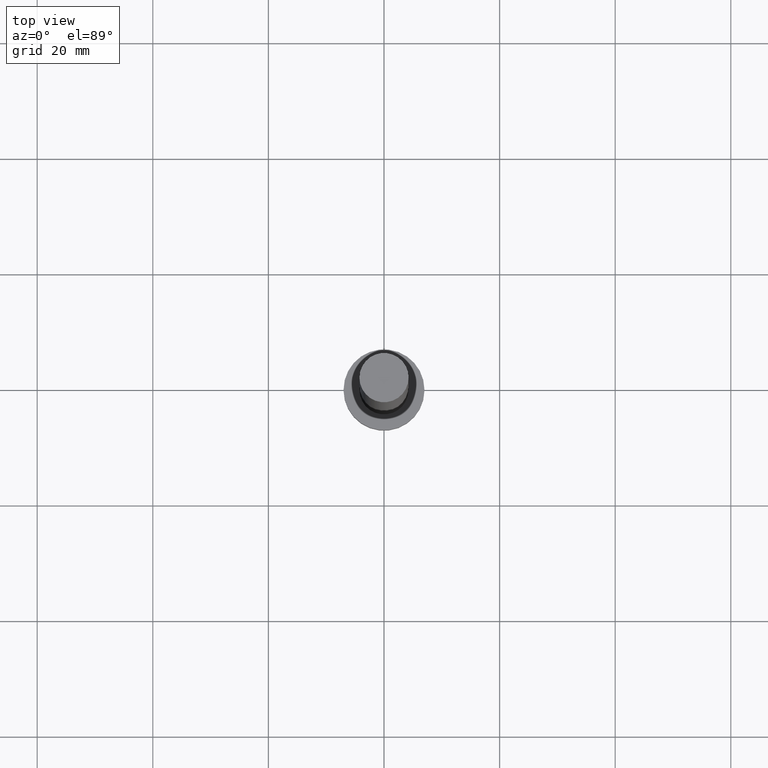
[diagram: clean part render]
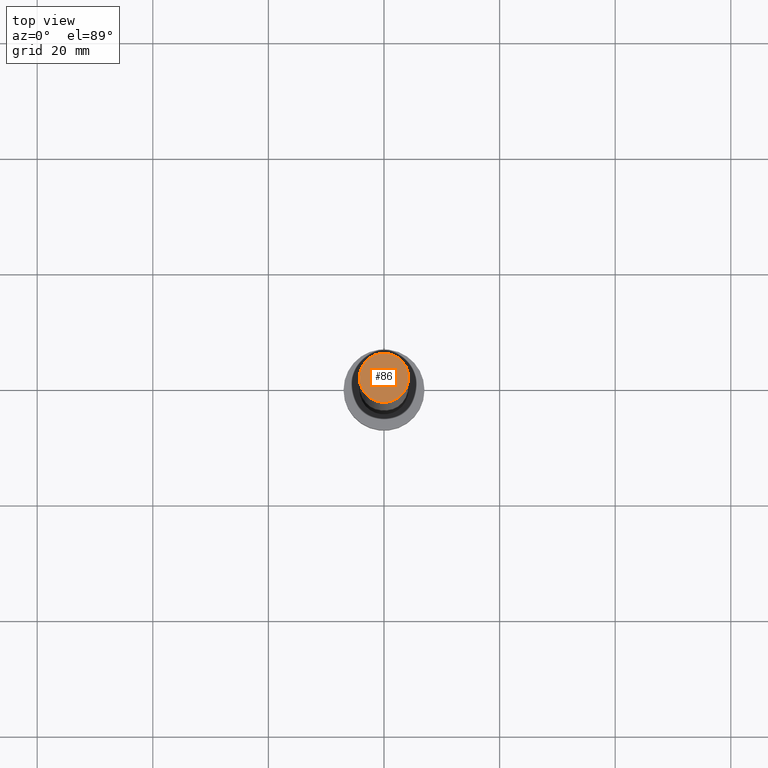
[diagram: same view with one face highlighted and labeled with its STEP entity id]
A machine part, top view. The second image highlights one B-rep face of the part: STEP entity #86.
In plain terms, the highlighted planar face has unit normal (0, 0, 1).
Its self-contained STEP definition (entity closure, byte-faithful):
#2 = PLANE ( 'NONE',  #158 ) ;
#28 = CIRCLE ( 'NONE', #195, 4.250000000000000000 ) ;
#33 = AXIS2_PLACEMENT_3D ( 'NONE', #142, #121, #63 ) ;
#39 = VERTEX_POINT ( 'NONE', #234 ) ;
#40 = EDGE_CURVE ( 'NONE', #39, #135, #28, .T. ) ;
#51 = ORIENTED_EDGE ( 'NONE', *, *, #170, .T. ) ;
#63 = DIRECTION ( 'NONE',  ( 1.000000000000000000, 0.000000000000000000, 0.000000000000000000 ) ) ;
#72 = ORIENTED_EDGE ( 'NONE', *, *, #40, .T. ) ;
#78 = CARTESIAN_POINT ( 'NONE',  ( 0.000000000000000000, 0.000000000000000000, 125.0000000000000000 ) ) ;
#86 = ADVANCED_FACE ( 'NONE', ( #255 ), #2, .T. ) ;
#116 = EDGE_LOOP ( 'NONE', ( #51, #72 ) ) ;
#121 = DIRECTION ( 'NONE',  ( 0.000000000000000000, 0.000000000000000000, 1.000000000000000000 ) ) ;
#133 = DIRECTION ( 'NONE',  ( 0.000000000000000000, 0.000000000000000000, 1.000000000000000000 ) ) ;
#135 = VERTEX_POINT ( 'NONE', #242 ) ;
#142 = CARTESIAN_POINT ( 'NONE',  ( 0.000000000000000000, 0.000000000000000000, 125.0000000000000000 ) ) ;
#158 = AXIS2_PLACEMENT_3D ( 'NONE', #78, #212, #173 ) ;
#170 = EDGE_CURVE ( 'NONE', #135, #39, #244, .T. ) ;
#173 = DIRECTION ( 'NONE',  ( 1.000000000000000000, 0.000000000000000000, -0.000000000000000000 ) ) ;
#195 = AXIS2_PLACEMENT_3D ( 'NONE', #254, #133, #236 ) ;
#212 = DIRECTION ( 'NONE',  ( 0.000000000000000000, 0.000000000000000000, 1.000000000000000000 ) ) ;
#234 = CARTESIAN_POINT ( 'NONE',  ( 4.250000000000000000, 5.204748896376250699E-16, 125.0000000000000000 ) ) ;
#236 = DIRECTION ( 'NONE',  ( 1.000000000000000000, 0.000000000000000000, 0.000000000000000000 ) ) ;
#242 = CARTESIAN_POINT ( 'NONE',  ( -4.250000000000000000, 0.000000000000000000, 125.0000000000000000 ) ) ;
#244 = CIRCLE ( 'NONE', #33, 4.250000000000000000 ) ;
#254 = CARTESIAN_POINT ( 'NONE',  ( 0.000000000000000000, 0.000000000000000000, 125.0000000000000000 ) ) ;
#255 = FACE_OUTER_BOUND ( 'NONE', #116, .T. ) ;